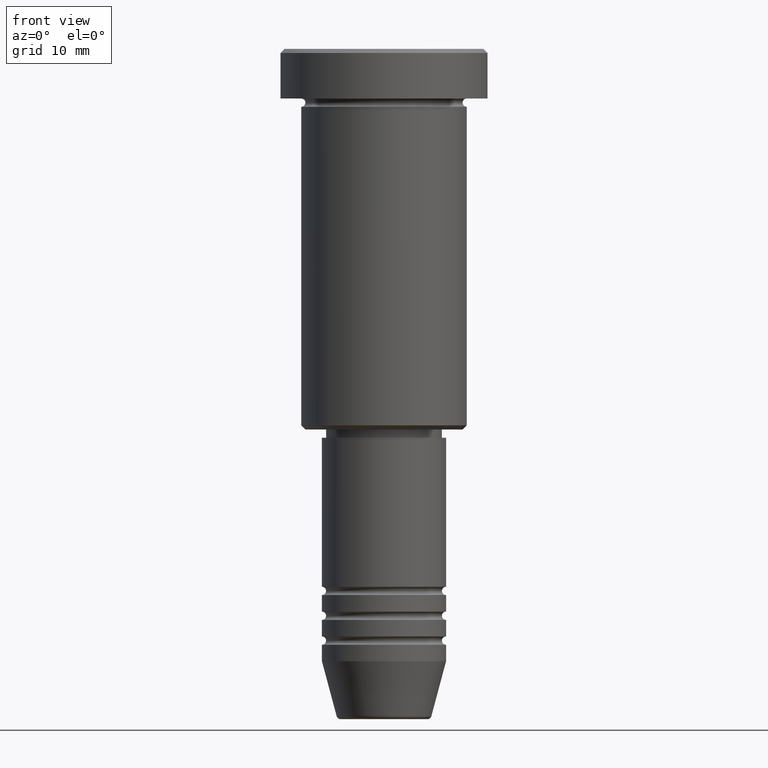
[diagram: clean part render]
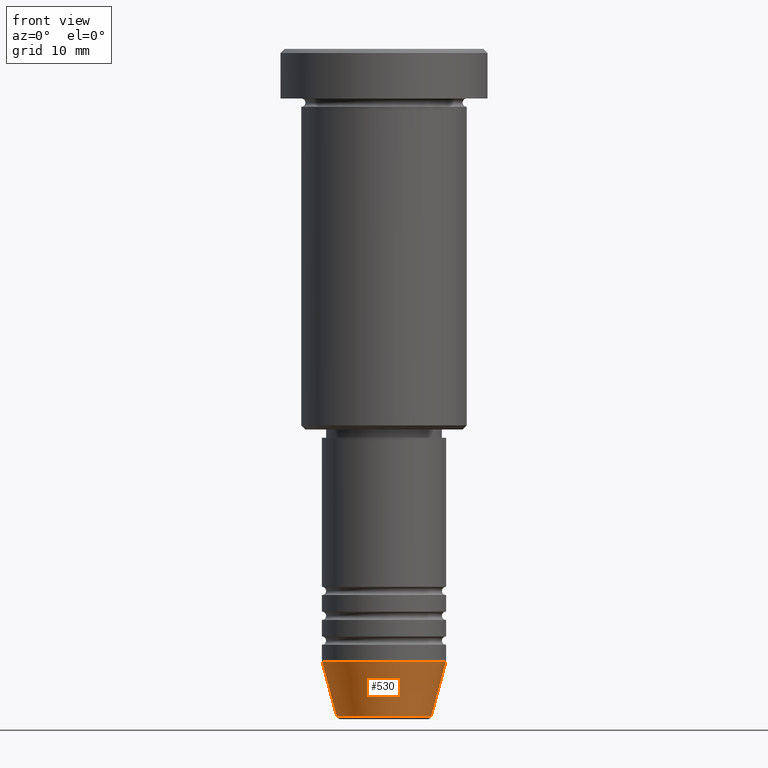
[diagram: same view with one face highlighted and labeled with its STEP entity id]
A machine part, front view. The second image highlights one B-rep face of the part: STEP entity #530.
In plain terms, the highlighted conical surface has half-angle 15 deg.
Its self-contained STEP definition (entity closure, byte-faithful):
#7 = VECTOR ( 'NONE', #1129, 1000.000000000000000 ) ;
#29 = DIRECTION ( 'NONE',  ( -0.000000000000000000, -0.000000000000000000, 1.000000000000000000 ) ) ;
#40 = EDGE_LOOP ( 'NONE', ( #348, #975, #575, #169 ) ) ;
#90 = CARTESIAN_POINT ( 'NONE',  ( 5.723655072137191269, 0.000000000000000000, -80.62940952255128479 ) ) ;
#91 = DIRECTION ( 'NONE',  ( -0.000000000000000000, -0.000000000000000000, 1.000000000000000000 ) ) ;
#132 = DIRECTION ( 'NONE',  ( 1.000000000000000000, 0.000000000000000000, 0.000000000000000000 ) ) ;
#153 = CARTESIAN_POINT ( 'NONE',  ( 7.500000000000000000, 0.000000000000000000, -74.00000000000001421 ) ) ;
#169 = ORIENTED_EDGE ( 'NONE', *, *, #602, .F. ) ;
#178 = CONICAL_SURFACE ( 'NONE', #1005, 7.500000000000000000, 0.2617993877991500740 ) ;
#191 = CARTESIAN_POINT ( 'NONE',  ( -5.723655072137190380, 8.097153428560735915E-16, -80.62940952255128479 ) ) ;
#220 = EDGE_CURVE ( 'NONE', #478, #1073, #629, .T. ) ;
#280 = AXIS2_PLACEMENT_3D ( 'NONE', #688, #1058, #132 ) ;
#346 = VERTEX_POINT ( 'NONE', #90 ) ;
#348 = ORIENTED_EDGE ( 'NONE', *, *, #220, .F. ) ;
#468 = VECTOR ( 'NONE', #813, 1000.000000000000000 ) ;
#474 = EDGE_CURVE ( 'NONE', #478, #346, #681, .T. ) ;
#478 = VERTEX_POINT ( 'NONE', #191 ) ;
#498 = DIRECTION ( 'NONE',  ( 1.000000000000000000, 0.000000000000000000, 0.000000000000000000 ) ) ;
#530 = ADVANCED_FACE ( 'NONE', ( #954 ), #178, .T. ) ;
#575 = ORIENTED_EDGE ( 'NONE', *, *, #974, .T. ) ;
#592 = CARTESIAN_POINT ( 'NONE',  ( 0.000000000000000000, 0.000000000000000000, -74.00000000000001421 ) ) ;
#602 = EDGE_CURVE ( 'NONE', #1073, #619, #1045, .T. ) ;
#619 = VERTEX_POINT ( 'NONE', #153 ) ;
#629 = LINE ( 'NONE', #788, #468 ) ;
#654 = DIRECTION ( 'NONE',  ( 1.000000000000000000, 0.000000000000000000, 0.000000000000000000 ) ) ;
#681 = CIRCLE ( 'NONE', #873, 5.723655072137191269 ) ;
#688 = CARTESIAN_POINT ( 'NONE',  ( 0.000000000000000000, 0.000000000000000000, -74.00000000000001421 ) ) ;
#765 = CARTESIAN_POINT ( 'NONE',  ( 7.500000000000000000, 0.000000000000000000, -74.00000000000001421 ) ) ;
#788 = CARTESIAN_POINT ( 'NONE',  ( -7.500000000000000000, 9.184850993605147944E-16, -74.00000000000001421 ) ) ;
#813 = DIRECTION ( 'NONE',  ( -0.2588190451025213501, 3.169619151431772337E-17, 0.9659258262890680902 ) ) ;
#873 = AXIS2_PLACEMENT_3D ( 'NONE', #1181, #91, #654 ) ;
#954 = FACE_OUTER_BOUND ( 'NONE', #40, .T. ) ;
#974 = EDGE_CURVE ( 'NONE', #346, #619, #1035, .T. ) ;
#975 = ORIENTED_EDGE ( 'NONE', *, *, #474, .T. ) ;
#991 = CARTESIAN_POINT ( 'NONE',  ( -7.500000000000000000, 9.184850993605147944E-16, -74.00000000000001421 ) ) ;
#1005 = AXIS2_PLACEMENT_3D ( 'NONE', #592, #29, #498 ) ;
#1035 = LINE ( 'NONE', #765, #7 ) ;
#1045 = CIRCLE ( 'NONE', #280, 7.500000000000000000 ) ;
#1058 = DIRECTION ( 'NONE',  ( -0.000000000000000000, -0.000000000000000000, 1.000000000000000000 ) ) ;
#1073 = VERTEX_POINT ( 'NONE', #991 ) ;
#1129 = DIRECTION ( 'NONE',  ( 0.2588190451025213501, 0.000000000000000000, 0.9659258262890680902 ) ) ;
#1181 = CARTESIAN_POINT ( 'NONE',  ( 0.000000000000000000, 0.000000000000000000, -80.62940952255128479 ) ) ;